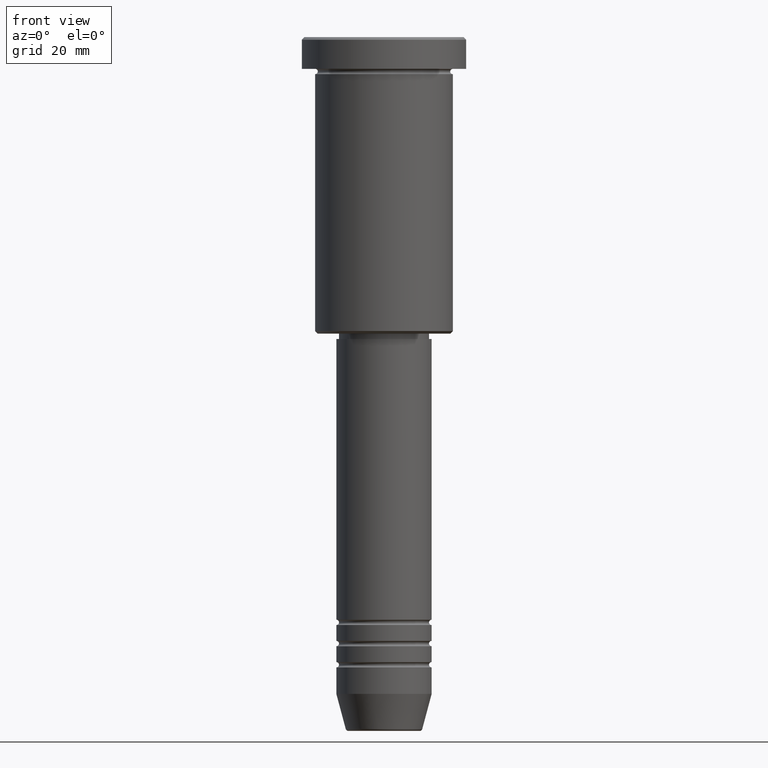
[diagram: clean part render]
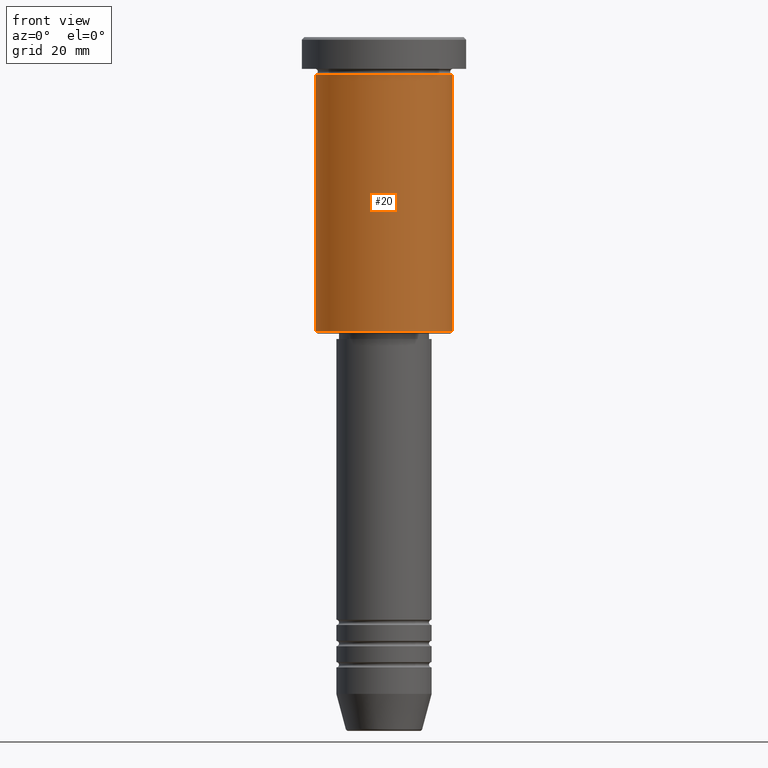
[diagram: same view with one face highlighted and labeled with its STEP entity id]
A machine part, front view. The second image highlights one B-rep face of the part: STEP entity #20.
In plain terms, the highlighted cylindrical surface (partial cylindrical patch) has radius 13 mm, axis along (-0, -0, 1).
Its self-contained STEP definition (entity closure, byte-faithful):
#16 = CYLINDRICAL_SURFACE ( 'NONE', #139, 13.00000000000000178 ) ;
#20 = ADVANCED_FACE ( 'NONE', ( #848 ), #16, .T. ) ;
#69 = CARTESIAN_POINT ( 'NONE',  ( -13.00000000000000178, 1.592040838891559293E-15, -55.49999999999995737 ) ) ;
#106 = CARTESIAN_POINT ( 'NONE',  ( 13.00000000000000178, 0.000000000000000000, -6.999999999999995559 ) ) ;
#107 = DIRECTION ( 'NONE',  ( -0.000000000000000000, -0.000000000000000000, 1.000000000000000000 ) ) ;
#133 = EDGE_CURVE ( 'NONE', #589, #297, #142, .T. ) ;
#139 = AXIS2_PLACEMENT_3D ( 'NONE', #822, #107, #659 ) ;
#142 = CIRCLE ( 'NONE', #289, 13.00000000000000178 ) ;
#162 = DIRECTION ( 'NONE',  ( -0.000000000000000000, -0.000000000000000000, 1.000000000000000000 ) ) ;
#288 = CARTESIAN_POINT ( 'NONE',  ( 0.000000000000000000, 0.000000000000000000, -6.999999999999995559 ) ) ;
#289 = AXIS2_PLACEMENT_3D ( 'NONE', #288, #646, #1014 ) ;
#297 = VERTEX_POINT ( 'NONE', #106 ) ;
#324 = ORIENTED_EDGE ( 'NONE', *, *, #784, .F. ) ;
#338 = CARTESIAN_POINT ( 'NONE',  ( 0.000000000000000000, 0.000000000000000000, -55.49999999999995737 ) ) ;
#352 = AXIS2_PLACEMENT_3D ( 'NONE', #338, #162, #882 ) ;
#383 = EDGE_LOOP ( 'NONE', ( #324, #387, #820, #918 ) ) ;
#384 = CARTESIAN_POINT ( 'NONE',  ( 13.00000000000000178, 0.000000000000000000, 0.000000000000000000 ) ) ;
#387 = ORIENTED_EDGE ( 'NONE', *, *, #834, .T. ) ;
#389 = CARTESIAN_POINT ( 'NONE',  ( -13.00000000000000178, 1.592040838891559293E-15, 0.000000000000000000 ) ) ;
#403 = VECTOR ( 'NONE', #501, 1000.000000000000000 ) ;
#449 = DIRECTION ( 'NONE',  ( -0.000000000000000000, -0.000000000000000000, 1.000000000000000000 ) ) ;
#501 = DIRECTION ( 'NONE',  ( -0.000000000000000000, -0.000000000000000000, 1.000000000000000000 ) ) ;
#546 = EDGE_CURVE ( 'NONE', #1017, #297, #622, .T. ) ;
#589 = VERTEX_POINT ( 'NONE', #1013 ) ;
#622 = LINE ( 'NONE', #384, #1170 ) ;
#646 = DIRECTION ( 'NONE',  ( -0.000000000000000000, -0.000000000000000000, 1.000000000000000000 ) ) ;
#659 = DIRECTION ( 'NONE',  ( 1.000000000000000000, 0.000000000000000000, 0.000000000000000000 ) ) ;
#664 = LINE ( 'NONE', #389, #403 ) ;
#784 = EDGE_CURVE ( 'NONE', #842, #589, #664, .T. ) ;
#820 = ORIENTED_EDGE ( 'NONE', *, *, #546, .T. ) ;
#822 = CARTESIAN_POINT ( 'NONE',  ( 0.000000000000000000, 0.000000000000000000, 0.000000000000000000 ) ) ;
#834 = EDGE_CURVE ( 'NONE', #842, #1017, #1054, .T. ) ;
#842 = VERTEX_POINT ( 'NONE', #69 ) ;
#848 = FACE_OUTER_BOUND ( 'NONE', #383, .T. ) ;
#882 = DIRECTION ( 'NONE',  ( -1.000000000000000000, 0.000000000000000000, 0.000000000000000000 ) ) ;
#918 = ORIENTED_EDGE ( 'NONE', *, *, #133, .F. ) ;
#961 = CARTESIAN_POINT ( 'NONE',  ( 13.00000000000000178, 0.000000000000000000, -55.49999999999995737 ) ) ;
#1013 = CARTESIAN_POINT ( 'NONE',  ( -13.00000000000000178, 1.592040838891559293E-15, -6.999999999999995559 ) ) ;
#1014 = DIRECTION ( 'NONE',  ( 1.000000000000000000, 0.000000000000000000, 0.000000000000000000 ) ) ;
#1017 = VERTEX_POINT ( 'NONE', #961 ) ;
#1054 = CIRCLE ( 'NONE', #352, 13.00000000000000178 ) ;
#1170 = VECTOR ( 'NONE', #449, 1000.000000000000000 ) ;